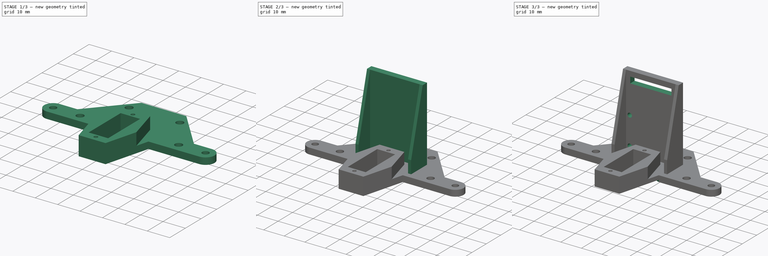
[diagram: build sequence overview — one tinted view per stage of 3, left to right]
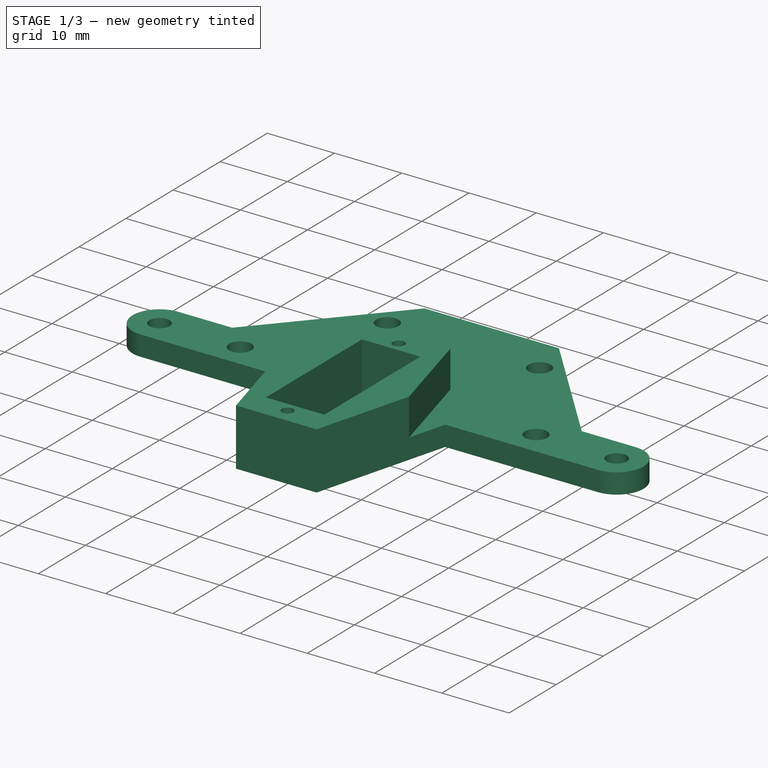
[diagram: stage 1 of 3 — iso view after this stage's code; geometry added in this stage tinted green]
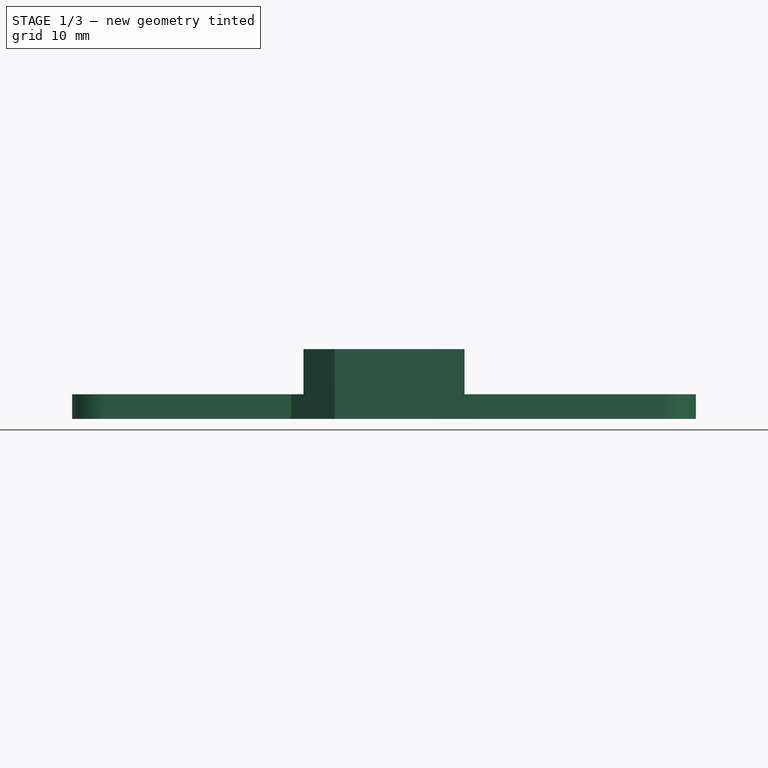
[diagram: stage 1 of 3 — front view after this stage's code; geometry added in this stage tinted green]
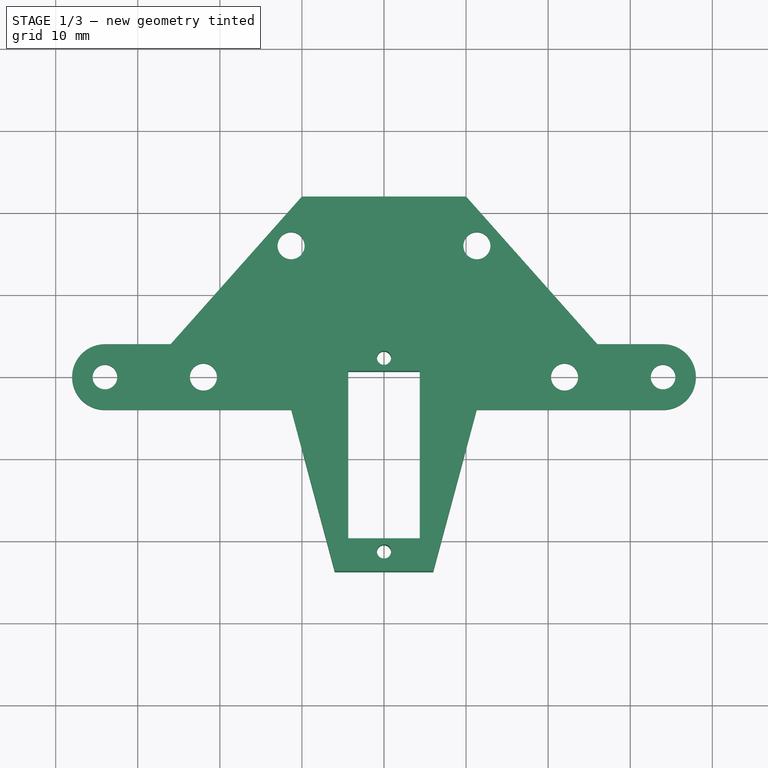
[diagram: stage 1 of 3 — top view after this stage's code; geometry added in this stage tinted green]
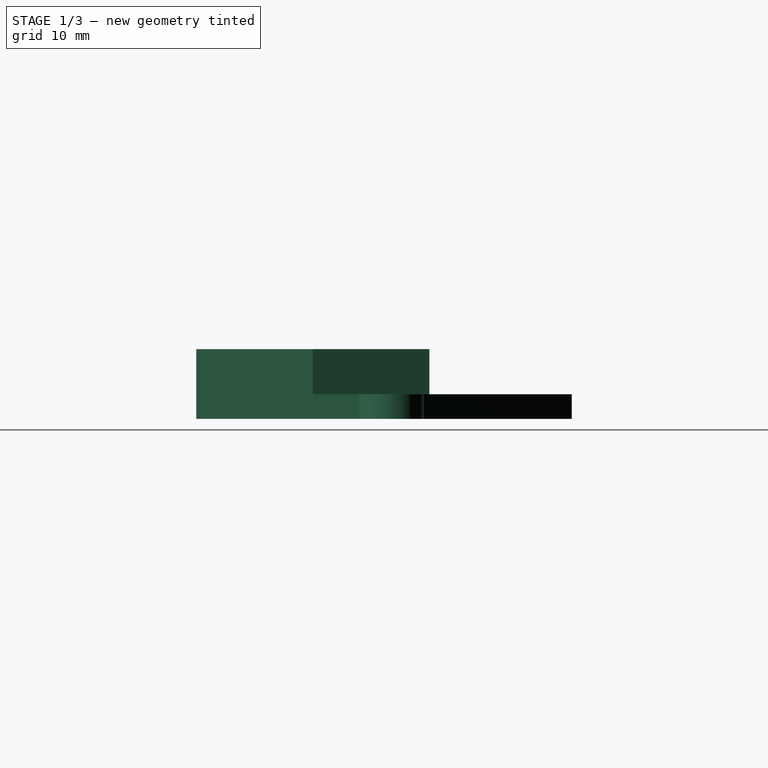
[diagram: stage 1 of 3 — right view after this stage's code; geometry added in this stage tinted green]
FCSTD DOCUMENT  (FreeCAD 1.0R39319 (Git))
Label: FrontCover
License: All rights reserved
LicenseURL: https://en.wikipedia.org/wiki/All_rights_reserved
objects: Sketcher::SketchObject×5, PartDesign::Pad×3, PartDesign::SubShapeBinder×2, PartDesign::Pocket×2, PartDesign::Chamfer×1, PartDesign::Body×1, App::Part×1
note: 31 computed .brp shape members not serialized (recipe doc carries the construction recipe); baked Part::Feature solids carry a one-line shape summary decoded from their .brp
EXTERNAL_REF file=../Models/SteeringAckermannModel.FCStd obj=Part
EXTERNAL_REF file=Chassis.FCStd obj=Part

FEATURE [PartDesign::SubShapeBinder] Binder  label="SteeringAckermannModel"
  BindCopyOnChange = 0
  BindMode = 0
  ClaimChildren = false
  Context = -> Part [Body.Binder.]
  Fuse = false
  MakeFace = true
  OffsetFill = false
  OffsetIntersection = false
  OffsetJoinType = 0
  OffsetOpenResult = false
  PartialLoad = false
  Refine = true
  Relative = true
  Support = -> [<external ../Models/SteeringAckermannModel.FCStd>#Part[Sketch001.]]
  _Version = 2
FEATURE [PartDesign::SubShapeBinder] Binder001  label="ChassisSketch002"
  BindCopyOnChange = 0
  BindMode = 0
  ClaimChildren = false
  Context = -> Part [Body.Binder001.]
  Fuse = false
  MakeFace = true
  OffsetFill = false
  OffsetIntersection = false
  OffsetJoinType = 0
  OffsetOpenResult = false
  PartialLoad = false
  Refine = true
  Relative = true
  Support = -> [<external Chassis.FCStd>#Part[Body.Sketch002.]]
  _Version = 2
FEATURE [Sketcher::SketchObject] Sketch
  ArcFitTolerance = 1e-06
  AttachmentSupport = -> [XY_Plane001]
  ExternalGeometry = -> [Binder001,Binder]
  FullyConstrained = true
  MakeInternals = false
  MapMode = 5
  sketch-geometry (27):
    g0: LineSegment StartX=-11.3 StartY=-4 StartZ=0 EndX=-26 EndY=-4 EndZ=0
    g1: LineSegment StartX=-26 StartY=-4 StartZ=0 EndX=-34 EndY=-4 EndZ=0
    g2: LineSegment StartX=-34 StartY=4 StartZ=0 EndX=-26 EndY=4 EndZ=0
    g3: LineSegment StartX=-26 StartY=4 StartZ=0 EndX=-10 EndY=22 EndZ=0
    g4: ArcOfCircle CenterX=-34 CenterY=-2e-16 CenterZ=0 NormalX=0 NormalY=0 NormalZ=1 AngleXU=0 Radius=4 StartAngle=1.5708 EndAngle=4.71239
    g5: LineSegment StartX=11.3 StartY=-4 StartZ=0 EndX=26 EndY=-4 EndZ=0
    g6: LineSegment StartX=26 StartY=4 StartZ=0 EndX=10 EndY=22 EndZ=0
    g7: LineSegment StartX=26 StartY=-4 StartZ=0 EndX=34 EndY=-4 EndZ=0
    g8: LineSegment StartX=26 StartY=4 StartZ=0 EndX=34 EndY=4 EndZ=0
    g9: ArcOfCircle CenterX=34 CenterY=0 CenterZ=0 NormalX=0 NormalY=0 NormalZ=1 AngleXU=0 Radius=4 StartAngle=4.71239 EndAngle=7.85398
    g10: LineSegment StartX=-10 StartY=22 StartZ=0 EndX=10 EndY=22 EndZ=0
    g11: LineSegment StartX=-11.3 StartY=-4 StartZ=0 EndX=-6 EndY=-23.75 EndZ=0
    g12: LineSegment StartX=-6 StartY=-23.75 StartZ=0 EndX=6 EndY=-23.75 EndZ=0
    g13: LineSegment StartX=6 StartY=-23.75 StartZ=0 EndX=11.3 EndY=-4 EndZ=0
    g14: LineSegment StartX=-4.35 StartY=0.65 StartZ=0 EndX=-4.35 EndY=-19.75 EndZ=0
    g15: LineSegment StartX=-4.35 StartY=-19.75 StartZ=0 EndX=4.35 EndY=-19.75 EndZ=0
    g16: LineSegment StartX=4.35 StartY=-19.75 StartZ=0 EndX=4.35 EndY=0.65 EndZ=0
    g17: LineSegment StartX=4.35 StartY=0.65 StartZ=0 EndX=-4.35 EndY=0.65 EndZ=0
    g18: GeomPoint X=4e-16 Y=-9.55 Z=0
    g19: Circle CenterX=0 CenterY=2.25 CenterZ=0 NormalX=0 NormalY=0 NormalZ=1 AngleXU=0 Radius=0.86
    g20: Circle CenterX=-7.473e-13 CenterY=-21.35 CenterZ=0 NormalX=0 NormalY=0 NormalZ=1 AngleXU=0 Radius=0.86
    g21: Circle CenterX=-34 CenterY=-2e-16 CenterZ=0 NormalX=0 NormalY=0 NormalZ=1 AngleXU=0 Radius=1.5
    g22: Circle CenterX=34 CenterY=0 CenterZ=0 NormalX=0 NormalY=0 NormalZ=1 AngleXU=0 Radius=1.5
    g23: Circle CenterX=-22 CenterY=0 CenterZ=0 NormalX=0 NormalY=0 NormalZ=1 AngleXU=0 Radius=1.65
    g24: Circle CenterX=-11.3195 CenterY=16 CenterZ=0 NormalX=0 NormalY=0 NormalZ=1 AngleXU=0 Radius=1.65
    g25: Circle CenterX=11.3195 CenterY=16 CenterZ=0 NormalX=0 NormalY=0 NormalZ=1 AngleXU=0 Radius=1.65
    g26: Circle CenterX=22 CenterY=0 CenterZ=0 NormalX=0 NormalY=0 NormalZ=1 AngleXU=0 Radius=1.65
  constraints (58):
    c: Coincident(g0,g-3)
    c: Coincident(g0,g-4)
    c: Coincident(g1,g0)
    c: Coincident(g2,g-7)
    c: Coincident(g3,g2)
    c: Coincident(g3,g-8)
    c: Tangent(g1,g4) = 1.5708
    c: Tangent(g2,g4) = 1.5708
    c: Coincident(g1,g-5)
    c: Horizontal(g2)
    c: Coincident(g5,g-12)
    c: Coincident(g5,g-13)
    c: Coincident(g6,g-16)
    c: Coincident(g6,g-17)
    c: Coincident(g7,g5)
    c: Coincident(g8,g6)
    c: Tangent(g7,g9) = -1.5708
    c: Tangent(g9,g8) = 1.5708
    c: Horizontal(g8)
    c: Coincident(g7,g-14)
    c: Coincident(g10,g3)
    c: Coincident(g10,g6)
    c: Coincident(g11,g0)
    c: Coincident(g12,g11)
    c: Coincident(g13,g12)
    c: Coincident(g13,g5)
    c: Symmetric(g11,g12,g-2)
    c: DistanceX(g12,g12) = 12
    c: Coincident(g14,g15)
    c: Coincident(g15,g16)
    c: Coincident(g16,g17)
    c: Coincident(g17,g14)
    c: Vertical(g14)
    c: Vertical(g16)
    c: Horizontal(g17)
    c: Symmetric(g14,g15,g-2)
    c: DistanceX(g15,g15) = 8.7
    c: DistanceY(g14,g14) = 20.4
    c: Distance(g-21,g17) = 4.65
    c: Distance(g12,g15) = 4
    c: Symmetric(g14,g16,g18)
    c: Diameter(g19) = 1.72
    c: PointOnObject(g19,g-2)
    c: Equal(g19,g20)
    c: Symmetric(g19,g20,g18)
    c: Distance(g19,g17) = 1.6
    c: Coincident(g21,g4)
    c: Equal(g21,g-9)
    c: Coincident(g22,g9)
    c: Equal(g22,g-18)
    c: Coincident(g23,g-10)
    c: Coincident(g24,g-11)
    c: Coincident(g25,g-20)
    c: Coincident(g26,g-19)
    c: Equal(g23,g26)
    c: Equal(g24,g25)
    c: Diameter(g23) = 3.3
    c: Diameter(g24) = 3.3
FEATURE [PartDesign::Pad] Pad
  Direction = (0,0,1)
  Length = 3
  Length2 = 10
  Profile = -> Sketch
  ReferenceAxis = -> Sketch [N_Axis]
  Refine = true
  Suppressed = false
  Type = 0
FEATURE [Sketcher::SketchObject] Sketch001
  ArcFitTolerance = 1e-06
  AttachmentSupport = -> [Pad]
  ExternalGeometry = -> [Sketch]
  FullyConstrained = true
  MakeInternals = false
  MapMode = 5
  Placement = pos=(0,0,3) rot=(0,0,1;0rad)
  sketch-geometry (13):
    g0: LineSegment StartX=-4.35 StartY=-19.75 StartZ=0 EndX=4.35 EndY=-19.75 EndZ=0
    g1: LineSegment StartX=4.35 StartY=-19.75 StartZ=0 EndX=4.35 EndY=0.65 EndZ=0
    g2: LineSegment StartX=4.35 StartY=0.65 StartZ=0 EndX=-4.35 EndY=0.65 EndZ=0
    g3: LineSegment StartX=-4.35 StartY=0.65 StartZ=0 EndX=-4.35 EndY=-19.75 EndZ=0
    g4: Circle CenterX=0 CenterY=-21.35 CenterZ=0 NormalX=0 NormalY=0 NormalZ=1 AngleXU=0 Radius=0.86
    g5: Circle CenterX=0 CenterY=2.25 CenterZ=0 NormalX=0 NormalY=0 NormalZ=1 AngleXU=0 Radius=0.86
    g6: LineSegment StartX=-6 StartY=-23.75 StartZ=0 EndX=6 EndY=-23.75 EndZ=0
    g7: LineSegment [constr] StartX=-9.81063 StartY=-9.55 StartZ=0 EndX=9.81063 EndY=-9.55 EndZ=0
    g8: LineSegment StartX=-6 StartY=-23.75 StartZ=0 EndX=-9.81063 EndY=-9.55 EndZ=0
    g9: LineSegment StartX=6 StartY=-23.75 StartZ=0 EndX=9.81063 EndY=-9.55 EndZ=0
    g10: LineSegment StartX=-6 StartY=4.65 StartZ=0 EndX=-9.81063 EndY=-9.55 EndZ=0
    g11: LineSegment StartX=-6 StartY=4.65 StartZ=0 EndX=6 EndY=4.65 EndZ=0
    g12: LineSegment StartX=6 StartY=4.65 StartZ=0 EndX=9.81063 EndY=-9.55 EndZ=0
  constraints (27):
    c: Coincident(g0,g-10)
    c: Coincident(g0,g-11)
    c: Coincident(g1,g0)
    c: Coincident(g1,g-12)
    c: Coincident(g2,g1)
    c: Coincident(g2,g-12)
    c: Coincident(g3,g2)
    c: Coincident(g3,g0)
    c: Coincident(g4,g-7)
    c: Equal(g4,g-7)
    c: Coincident(g5,g-8)
    c: Equal(g5,g-8)
    c: Coincident(g6,g-5)
    c: Coincident(g6,g-6)
    c: Horizontal(g7)
    c: Symmetric(g7,g7,g-3)
    c: PointOnObject(g7,g-4)
    c: Coincident(g8,g6)
    c: Coincident(g8,g7)
    c: Coincident(g9,g6)
    c: Coincident(g9,g7)
    c: Coincident(g10,g11)
    c: Coincident(g12,g11)
    c: Symmetric(g6,g10,g7)
    c: Symmetric(g6,g11,g7)
    c: Coincident(g10,g7)
    c: Coincident(g12,g7)
FEATURE [PartDesign::Pad] Pad001
  BaseFeature = -> Pad
  Direction = (0,0,1)
  Length = 5.5
  Length2 = 10
  Profile = -> Sketch001
  ReferenceAxis = -> Sketch001 [N_Axis]
  Refine = true
  Suppressed = false
  Type = 0
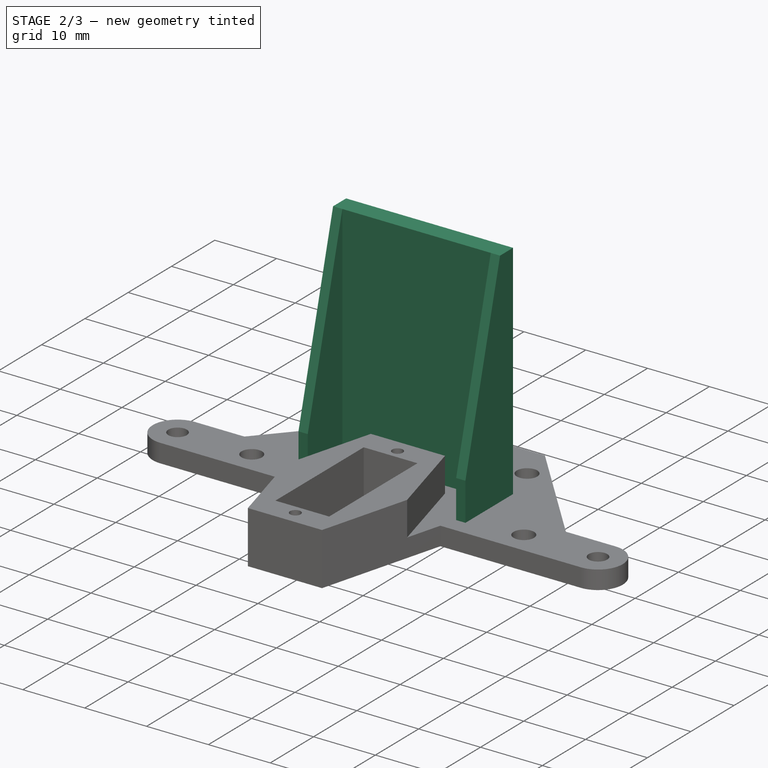
[diagram: stage 2 of 3 — iso view after this stage's code; geometry added in this stage tinted green]
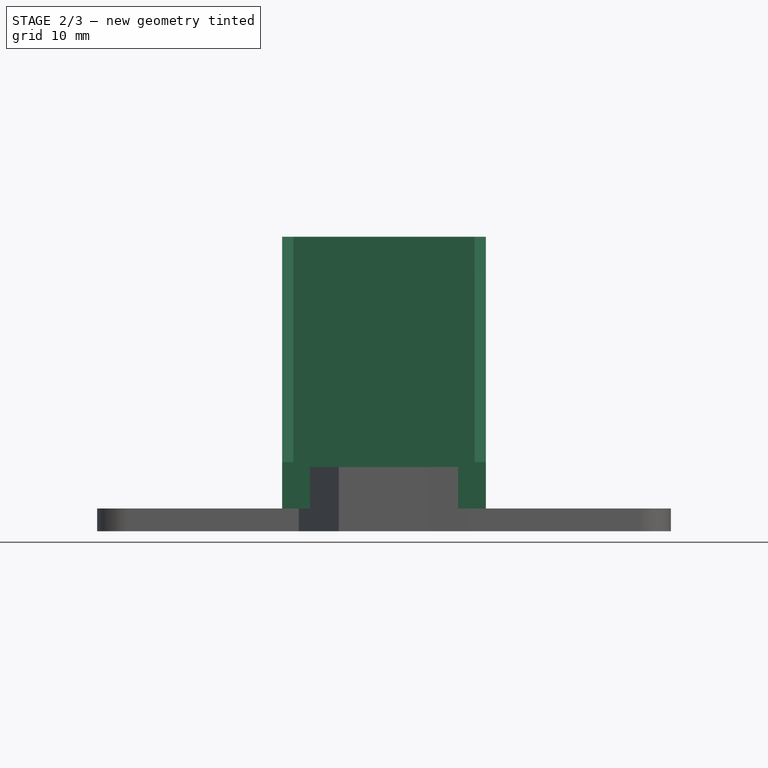
[diagram: stage 2 of 3 — front view after this stage's code; geometry added in this stage tinted green]
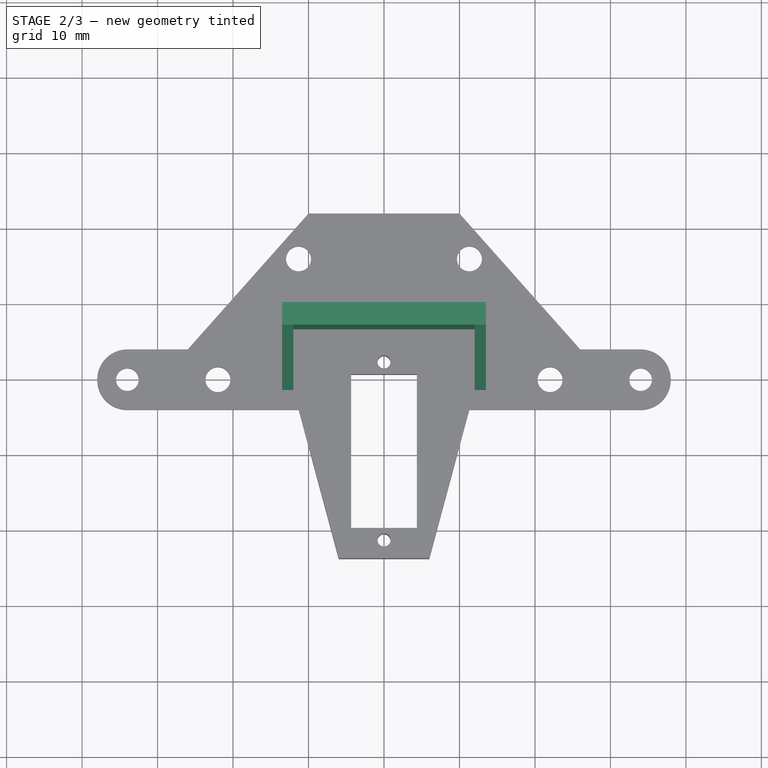
[diagram: stage 2 of 3 — top view after this stage's code; geometry added in this stage tinted green]
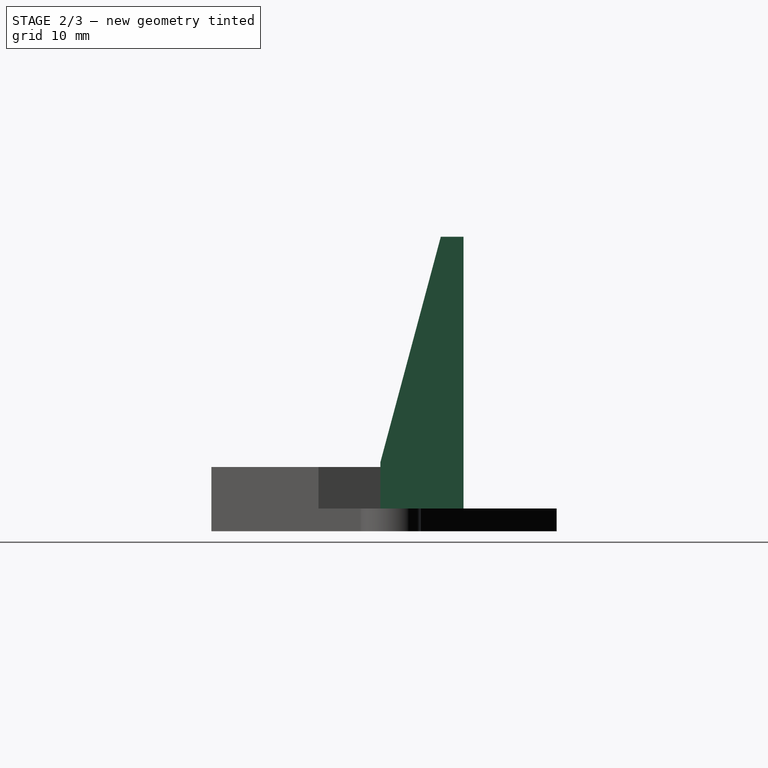
[diagram: stage 2 of 3 — right view after this stage's code; geometry added in this stage tinted green]
FEATURE [Sketcher::SketchObject] Sketch002
  ArcFitTolerance = 1e-06
  AttachmentSupport = -> [Pad001]
  ExternalGeometry = -> [Sketch001]
  FullyConstrained = true
  MakeInternals = false
  MapMode = 5
  Placement = pos=(0,0,3) rot=(0,0,1;0rad)
  sketch-geometry (8):
    g0: LineSegment StartX=-12 StartY=6.65 StartZ=0 EndX=-12 EndY=-1.35 EndZ=0
    g1: LineSegment StartX=-12 StartY=-1.35 StartZ=0 EndX=-13.5 EndY=-1.35 EndZ=0
    g2: LineSegment StartX=-13.5 StartY=-1.35 StartZ=0 EndX=-13.5 EndY=9.65 EndZ=0
    g3: LineSegment StartX=-12 StartY=6.65 StartZ=0 EndX=12 EndY=6.65 EndZ=0
    g4: LineSegment StartX=-13.5 StartY=9.65 StartZ=0 EndX=13.5 EndY=9.65 EndZ=0
    g5: LineSegment StartX=12 StartY=6.65 StartZ=0 EndX=12 EndY=-1.35 EndZ=0
    g6: LineSegment StartX=12 StartY=-1.35 StartZ=0 EndX=13.5 EndY=-1.35 EndZ=0
    g7: LineSegment StartX=13.5 StartY=-1.35 StartZ=0 EndX=13.5 EndY=9.65 EndZ=0
  constraints (20):
    c: Vertical(g0)
    c: Coincident(g1,g0)
    c: Horizontal(g1)
    c: Coincident(g2,g1)
    c: Vertical(g2)
    c: Coincident(g3,g0)
    c: Coincident(g4,g2)
    c: Symmetric(g2,g4,g-2)
    c: Symmetric(g0,g3,g-2)
    c: Coincident(g5,g3)
    c: Coincident(g6,g5)
    c: Coincident(g7,g6)
    c: Coincident(g7,g4)
    c: Symmetric(g1,g6,g-2)
    c: Symmetric(g0,g5,g-2)
    c: DistanceX(g1,g1) = 1.5
    c: DistanceY(g0,g0) = 8
    c: Distance(g4,g3) = 3
    c: Distance(g-3,g3) = 2
    c: DistanceX(g4,g4) = 27
FEATURE [PartDesign::Pad] Pad002
  BaseFeature = -> Pad001
  Direction = (0,0,1)
  Length = 36
  Length2 = 10
  Profile = -> Sketch002
  ReferenceAxis = -> Sketch002 [N_Axis]
  Refine = true
  Suppressed = false
  Type = 0
FEATURE [PartDesign::Chamfer] Chamfer
  Angle = 15
  Base = -> Pad002 [Edge107,Edge99]
  BaseFeature = -> Pad002
  ChamferType = 2
  FlipDirection = false
  Refine = true
  Size = 29.85
  Size2 = 1
  SupportTransform = false
  Suppressed = false
  UseAllEdges = false
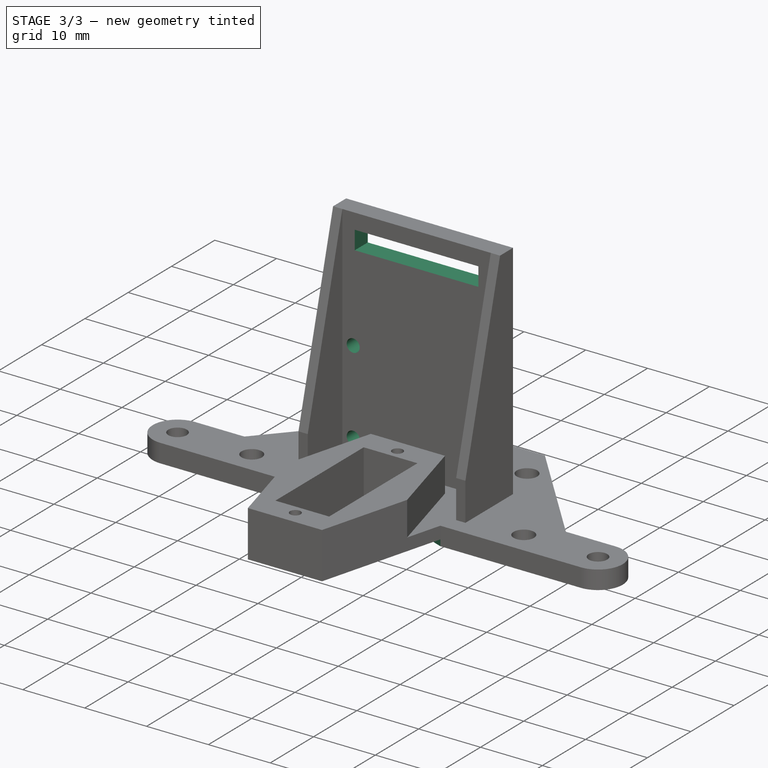
[diagram: stage 3 of 3 — iso view after this stage's code; geometry added in this stage tinted green]
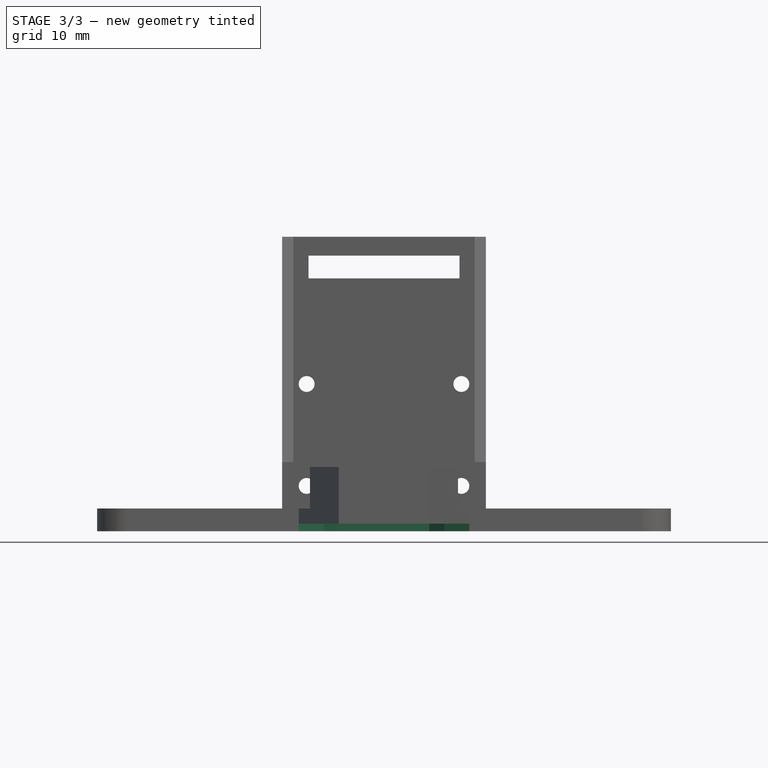
[diagram: stage 3 of 3 — front view after this stage's code; geometry added in this stage tinted green]
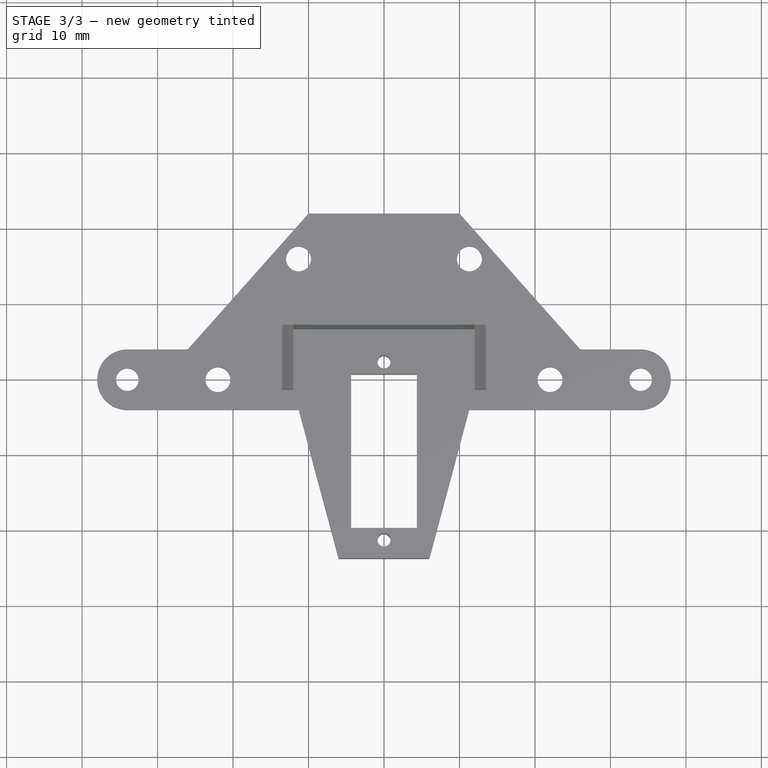
[diagram: stage 3 of 3 — top view after this stage's code; geometry added in this stage tinted green]
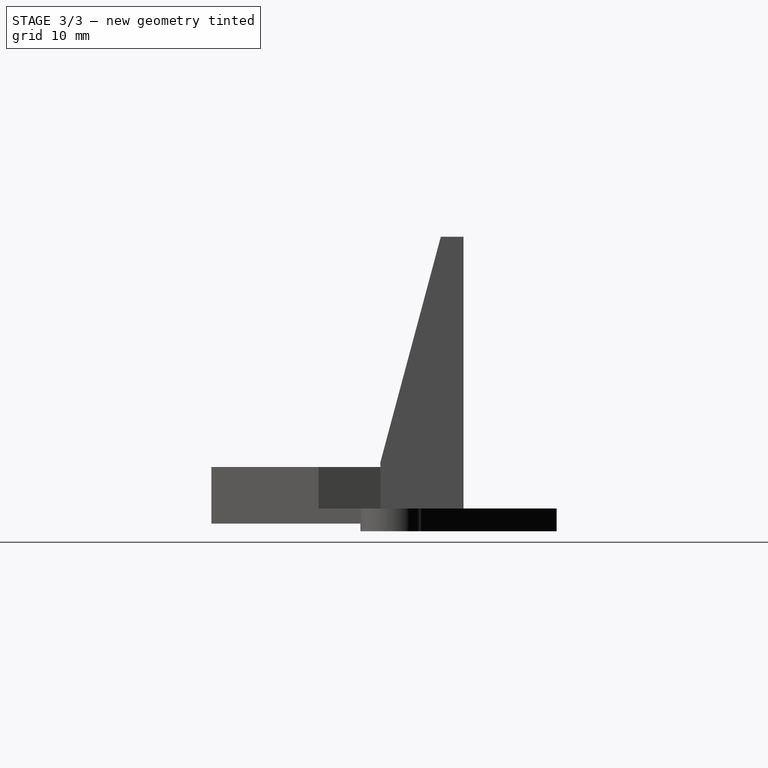
[diagram: stage 3 of 3 — right view after this stage's code; geometry added in this stage tinted green]
FEATURE [Sketcher::SketchObject] Sketch003
  ArcFitTolerance = 1e-06
  AttachmentSupport = -> [Chamfer]
  ExternalGeometry = -> [Chamfer]
  FullyConstrained = true
  MakeInternals = false
  MapMode = 5
  Placement = pos=(0,9.65,0) rot=(0,0.707107,0.707107;3.14159rad)
  sketch-geometry (14):
    g0: LineSegment [constr] StartX=-10.25 StartY=6 StartZ=0 EndX=10.25 EndY=6 EndZ=0
    g1: LineSegment [constr] StartX=10.25 StartY=6 StartZ=0 EndX=10.25 EndY=19.5 EndZ=0
    g2: LineSegment [constr] StartX=10.25 StartY=19.5 StartZ=0 EndX=-10.25 EndY=19.5 EndZ=0
    g3: LineSegment [constr] StartX=-10.25 StartY=19.5 StartZ=0 EndX=-10.25 EndY=6 EndZ=0
    g4: GeomPoint [constr] X=0 Y=12.75 Z=0
    g5: Circle CenterX=-10.25 CenterY=6 CenterZ=0 NormalX=0 NormalY=0 NormalZ=1 AngleXU=0 Radius=1.05
    g6: Circle CenterX=-10.25 CenterY=19.5 CenterZ=0 NormalX=0 NormalY=0 NormalZ=1 AngleXU=0 Radius=1.05
    g7: Circle CenterX=10.25 CenterY=6 CenterZ=0 NormalX=0 NormalY=0 NormalZ=1 AngleXU=0 Radius=1.05
    g8: Circle CenterX=10.25 CenterY=19.5 CenterZ=0 NormalX=0 NormalY=0 NormalZ=1 AngleXU=0 Radius=1.05
    g9: LineSegment StartX=-10 StartY=33.5 StartZ=0 EndX=10 EndY=33.5 EndZ=0
    g10: LineSegment StartX=10 StartY=33.5 StartZ=0 EndX=10 EndY=36.5 EndZ=0
    g11: LineSegment StartX=10 StartY=36.5 StartZ=0 EndX=-10 EndY=36.5 EndZ=0
    g12: LineSegment StartX=-10 StartY=36.5 StartZ=0 EndX=-10 EndY=33.5 EndZ=0
    g13: GeomPoint [constr] X=0 Y=35 Z=0
  constraints (34):
    c: Coincident(g0,g1)
    c: Coincident(g1,g2)
    c: Coincident(g2,g3)
    c: Coincident(g3,g0)
    c: Horizontal(g0)
    c: Horizontal(g2)
    c: Vertical(g1)
    c: Vertical(g3)
    c: Symmetric(g2,g0,g4)
    c: PointOnObject(g4,g-2)
    c: Diameter(g5) = 2.1
    c: Coincident(g6,g2)
    c: Coincident(g7,g0)
    c: Coincident(g8,g1)
    c: Equal(g5,g6)
    c: Equal(g5,g7)
    c: Equal(g6,g8)
    c: DistanceX(g0,g0) = 20.5
    c: DistanceY(g3,g3) = 13.5
    c: Distance(g0,g-3) = 3
    c: Coincident(g5,g0)
    c: Coincident(g9,g10)
    c: Coincident(g10,g11)
    c: Coincident(g11,g12)
    c: Coincident(g12,g9)
    c: Horizontal(g9)
    c: Horizontal(g11)
    c: Vertical(g10)
    c: Vertical(g12)
    c: Symmetric(g11,g9,g13)
    c: PointOnObject(g13,g-2)
    c: DistanceX(g9,g9) = 20
    c: DistanceY(g12,g12) = 3
    c: DistanceY(g2,g9) = 14
FEATURE [PartDesign::Pocket] Pocket
  BaseFeature = -> Chamfer
  Direction = (0,-1,2e-16)
  Length = 0
  Length2 = 5
  Profile = -> Sketch003
  ReferenceAxis = -> Sketch003 [N_Axis]
  Refine = true
  Suppressed = false
  Type = 3
  UpToFace = -> Chamfer [Face6]
FEATURE [Sketcher::SketchObject] Sketch004
  ArcFitTolerance = 1e-06
  AttachmentSupport = -> [Pocket]
  ExternalGeometry = -> [Binder001,Sketch,Sketch001]
  FullyConstrained = true
  MakeInternals = false
  MapMode = 5
  Placement = pos=(0,0,0) rot=(1,0,0;3.14159rad)
  sketch-geometry (8):
    g0: LineSegment StartX=-8 StartY=2.75 StartZ=0 EndX=-11.3 EndY=4 EndZ=0
    g1: LineSegment StartX=-11.3 StartY=4 StartZ=0 EndX=-6 EndY=23.75 EndZ=0
    g2: LineSegment StartX=-6 StartY=23.75 StartZ=0 EndX=6 EndY=23.75 EndZ=0
    g3: LineSegment StartX=6 StartY=23.75 StartZ=0 EndX=11.3 EndY=4 EndZ=0
    g4: LineSegment StartX=11.3 StartY=4 StartZ=0 EndX=8 EndY=2.75 EndZ=0
    g5: LineSegment StartX=-8 StartY=2.75 StartZ=0 EndX=-6 EndY=-4.65 EndZ=0
    g6: LineSegment StartX=-6 StartY=-4.65 StartZ=0 EndX=6 EndY=-4.65 EndZ=0
    g7: LineSegment StartX=6 StartY=-4.65 StartZ=0 EndX=8 EndY=2.75 EndZ=0
  constraints (16):
    c: Coincident(g0,g-7)
    c: Coincident(g1,g0)
    c: Coincident(g1,g-8)
    c: Coincident(g2,g1)
    c: Coincident(g2,g-9)
    c: Coincident(g3,g2)
    c: Coincident(g3,g-9)
    c: Coincident(g4,g3)
    c: Coincident(g4,g-6)
    c: Coincident(g0,g-4)
    c: Coincident(g5,g0)
    c: Coincident(g5,g-11)
    c: Coincident(g6,g5)
    c: Coincident(g6,g-12)
    c: Coincident(g7,g6)
    c: Coincident(g7,g4)
FEATURE [PartDesign::Pocket] Pocket001
  BaseFeature = -> Pocket
  Direction = (0,0,1)
  Length = 1
  Length2 = 5
  Profile = -> Sketch004
  ReferenceAxis = -> Sketch004 [N_Axis]
  Refine = true
  Suppressed = false
  Type = 0
FEATURE [PartDesign::Body] Body  label="FrontCoverBody"
  AllowCompound = false
  Group = -> [Binder,Binder001,Sketch,Pad,Sketch001,Pad001,Sketch002,Pad002,Chamfer,Sketch003,Pocket,Sketch004,Pocket001]
  Origin = -> Origin001
  Tip = -> Pocket001
FEATURE [App::Part] Part  label="FrontCoverPart"
  Group = -> [Body]
  Origin = -> Origin
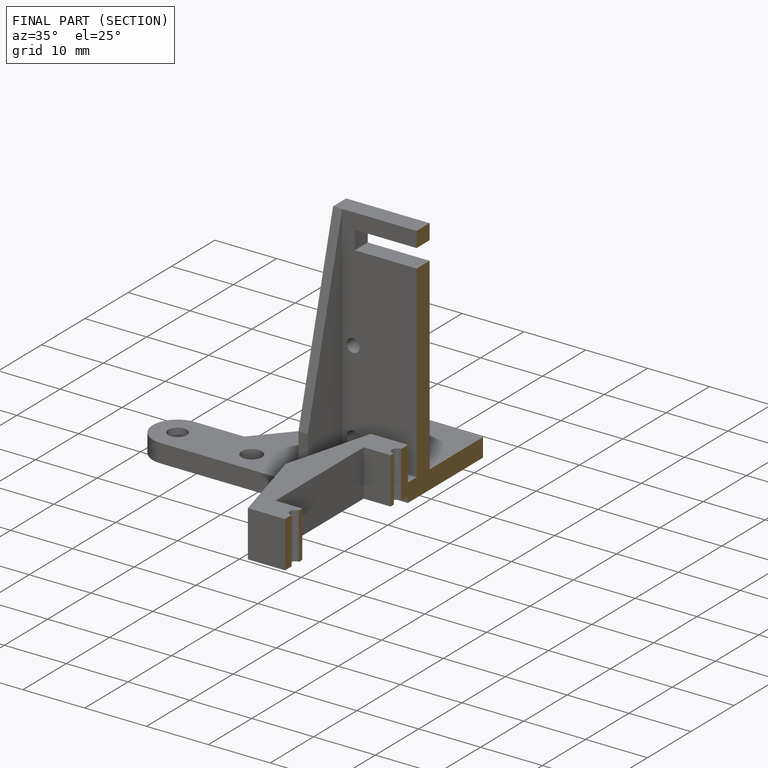
[diagram: finished part — half-section view (interior)]
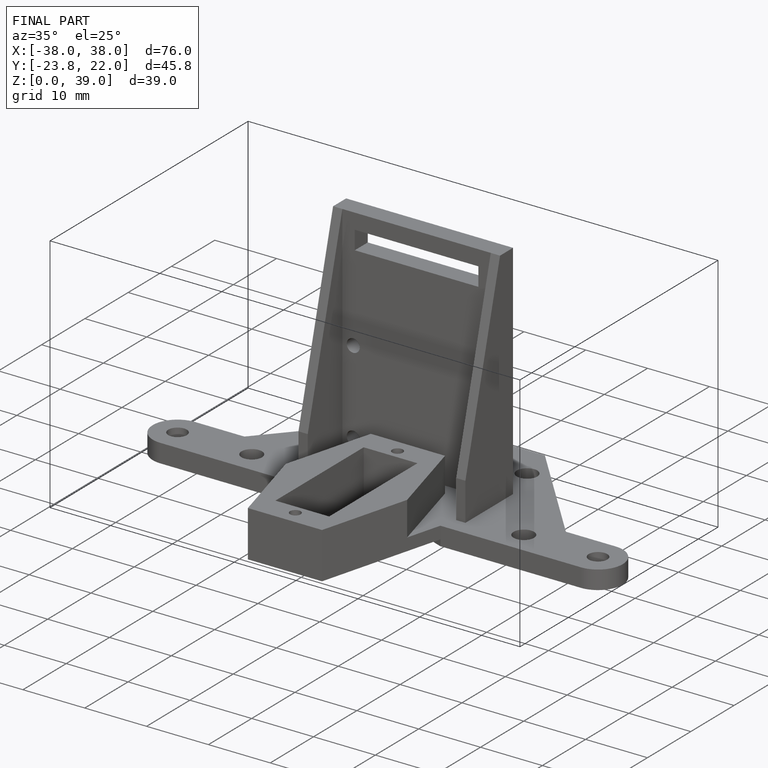
[diagram: finished part — iso view with bounding-box wireframe]
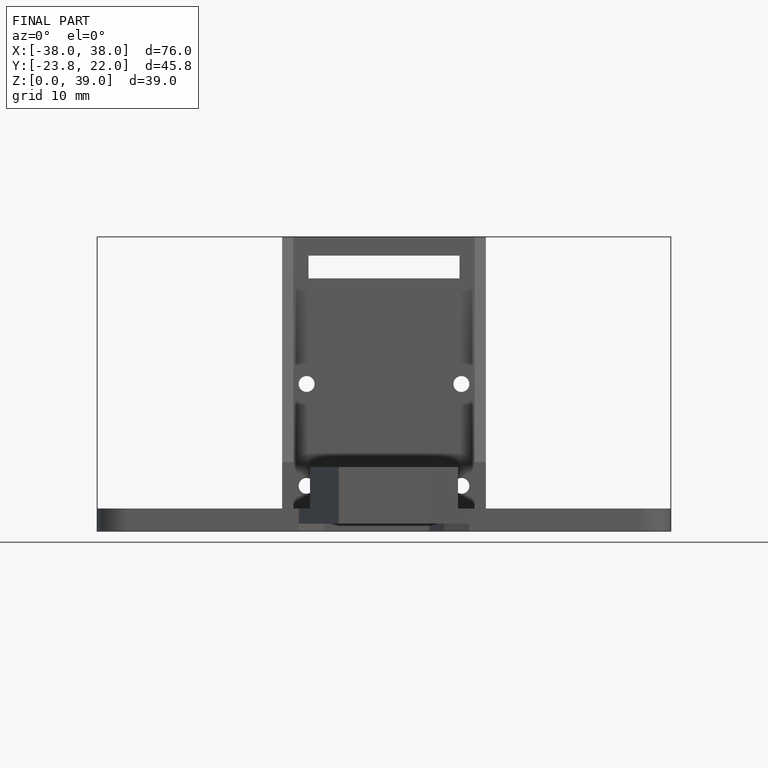
[diagram: finished part — front view with bounding-box wireframe]
